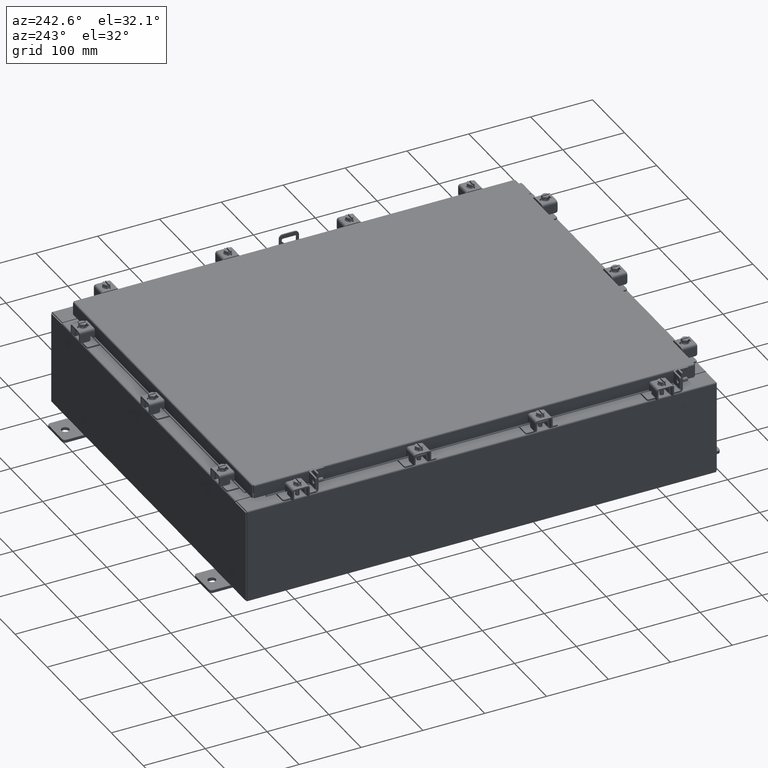
[diagram: clean part render]
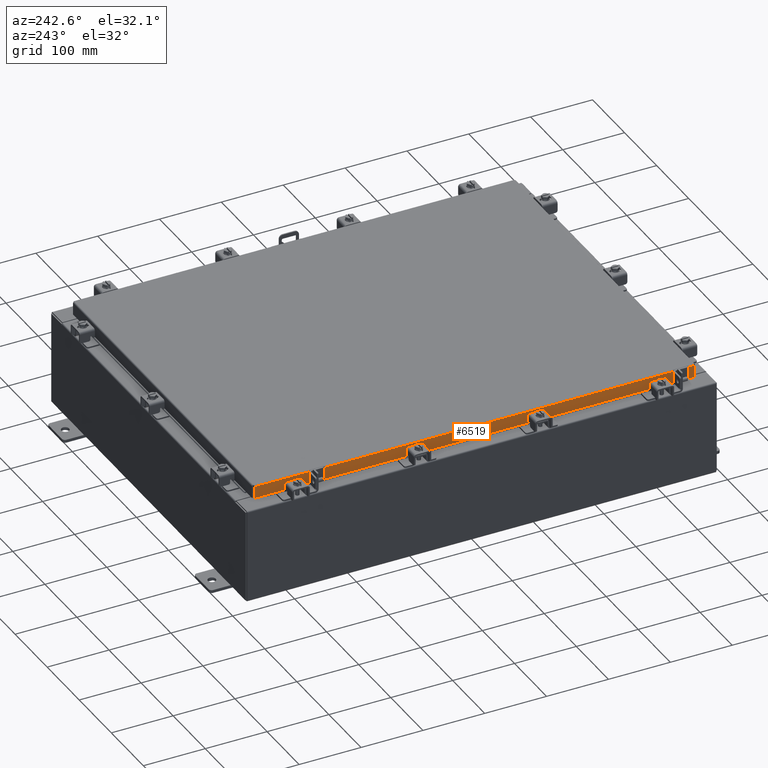
[diagram: same view with one face highlighted and labeled with its STEP entity id]
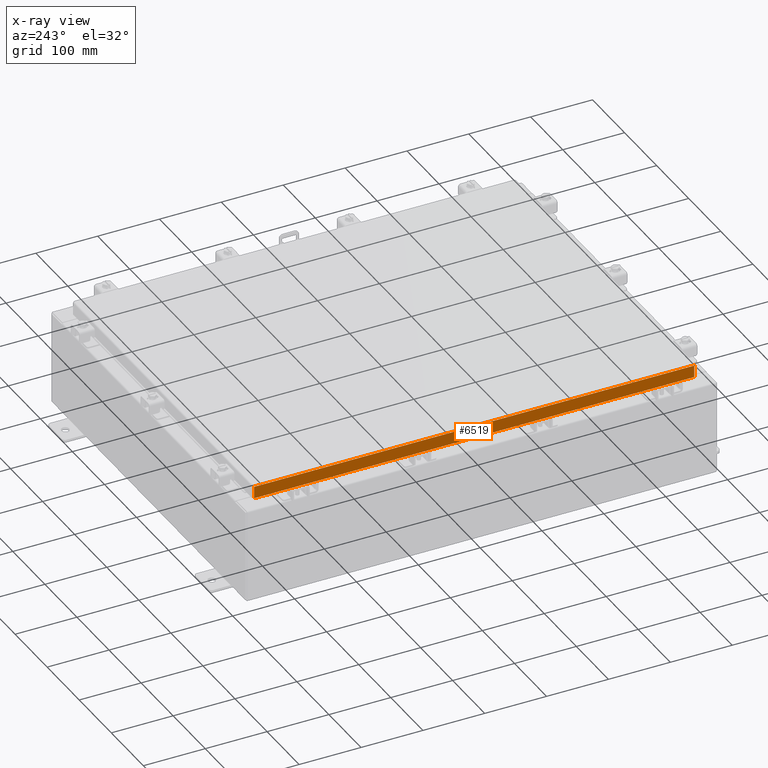
[diagram: x-ray of the same camera — body ghosted, the highlighted face saturated]
A machine part, auxiliary view. The second image highlights one B-rep face of the part: STEP entity #6519.
The next image is the same camera in x-ray: the body ghosted, the highlighted face saturated — about 0% of this face is hidden behind the body in this view.
In plain terms, the highlighted planar face has unit normal (1, 0, -0).
Its self-contained STEP definition (entity closure, byte-faithful):
#70 = LINE ( 'NONE', #166, #18541 ) ;
#166 = CARTESIAN_POINT ( 'NONE',  ( -11.07799999999999900, -14.00515786437626500, -0.07469999999999978000 ) ) ;
#1214 = VECTOR ( 'NONE', #10271, 39.37007874015748100 ) ;
#1936 = DIRECTION ( 'NONE',  ( -2.818880942772360100E-015, 6.982962677686265900E-015, -1.000000000000000000 ) ) ;
#2084 = CARTESIAN_POINT ( 'NONE',  ( -11.07799999999999900, -14.09399999999999600, -0.08770000000000007000 ) ) ;
#2090 = LINE ( 'NONE', #3295, #11014 ) ;
#2263 = ORIENTED_EDGE ( 'NONE', *, *, #4721, .F. ) ;
#2434 = VERTEX_POINT ( 'NONE', #13187 ) ;
#2695 = VERTEX_POINT ( 'NONE', #16644 ) ;
#3128 = LINE ( 'NONE', #7439, #12636 ) ;
#3295 = CARTESIAN_POINT ( 'NONE',  ( -11.07800000000000300, -14.09399999999999600, -0.8499999999999996400 ) ) ;
#3687 = ORIENTED_EDGE ( 'NONE', *, *, #13384, .F. ) ;
#3900 = DIRECTION ( 'NONE',  ( 3.414908049476327800E-031, -1.000000000000000000, -9.308245715024052500E-046 ) ) ;
#4721 = EDGE_CURVE ( 'NONE', #17119, #2695, #3128, .T. ) ;
#5331 = LINE ( 'NONE', #18601, #8929 ) ;
#6107 = CARTESIAN_POINT ( 'NONE',  ( -11.07799999999999900, 14.00515786437626900, -0.08770000000000007000 ) ) ;
#6442 = VERTEX_POINT ( 'NONE', #16972 ) ;
#6519 = ADVANCED_FACE ( 'NONE', ( #8438 ), #17133, .F. ) ;
#6985 = VERTEX_POINT ( 'NONE', #6107 ) ;
#7278 = EDGE_LOOP ( 'NONE', ( #22928, #10538, #3687, #2263, #16052, #15220 ) ) ;
#7439 = CARTESIAN_POINT ( 'NONE',  ( -11.07799999999999600, -13.25515786437626200, -0.8500000000000012000 ) ) ;
#7906 = DIRECTION ( 'NONE',  ( -0.0000000000000000000, 1.000000000000000000, -0.0000000000000000000 ) ) ;
#8009 = CARTESIAN_POINT ( 'NONE',  ( -11.07799999999999600, -13.25515786437625600, -0.8500000000000012000 ) ) ;
#8203 = EDGE_CURVE ( 'NONE', #6442, #17119, #5331, .T. ) ;
#8438 = FACE_OUTER_BOUND ( 'NONE', #7278, .T. ) ;
#8929 = VECTOR ( 'NONE', #20505, 39.37007874015748100 ) ;
#9989 = CARTESIAN_POINT ( 'NONE',  ( -11.07799999999999900, -3.783035137209876100E-030, 3.148837674004379000E-014 ) ) ;
#10271 = DIRECTION ( 'NONE',  ( -2.818880942772360100E-015, 6.982962677686265900E-015, -1.000000000000000000 ) ) ;
#10538 = ORIENTED_EDGE ( 'NONE', *, *, #14706, .T. ) ;
#10692 = LINE ( 'NONE', #19224, #1214 ) ;
#11014 = VECTOR ( 'NONE', #21227, 39.37007874015748100 ) ;
#11489 = VERTEX_POINT ( 'NONE', #16757 ) ;
#11788 = DIRECTION ( 'NONE',  ( -2.818880942772360100E-015, 0.0000000000000000000, -1.000000000000000000 ) ) ;
#12636 = VECTOR ( 'NONE', #7906, 39.37007874015748100 ) ;
#13187 = CARTESIAN_POINT ( 'NONE',  ( -11.07799999999999900, -14.00515786437626400, -0.08770000000000007000 ) ) ;
#13384 = EDGE_CURVE ( 'NONE', #2695, #11489, #2090, .T. ) ;
#14706 = EDGE_CURVE ( 'NONE', #6985, #11489, #10692, .T. ) ;
#15220 = ORIENTED_EDGE ( 'NONE', *, *, #16199, .F. ) ;
#16052 = ORIENTED_EDGE ( 'NONE', *, *, #8203, .F. ) ;
#16199 = EDGE_CURVE ( 'NONE', #2434, #6442, #70, .T. ) ;
#16644 = CARTESIAN_POINT ( 'NONE',  ( -11.07799999999999600, 13.25515786437627400, -0.8500000000000012000 ) ) ;
#16757 = CARTESIAN_POINT ( 'NONE',  ( -11.07800000000000300, 14.00515786437627400, -0.8499999999999963100 ) ) ;
#16972 = CARTESIAN_POINT ( 'NONE',  ( -11.07800000000000300, -14.00515786437626200, -0.8499999999999996400 ) ) ;
#17119 = VERTEX_POINT ( 'NONE', #8009 ) ;
#17133 = PLANE ( 'NONE',  #17813 ) ;
#17813 = AXIS2_PLACEMENT_3D ( 'NONE', #9989, #22530, #11788 ) ;
#18344 = VECTOR ( 'NONE', #3900, 39.37007874015748100 ) ;
#18541 = VECTOR ( 'NONE', #1936, 39.37007874015748100 ) ;
#18601 = CARTESIAN_POINT ( 'NONE',  ( -11.07800000000000300, -14.09399999999999600, -0.8499999999999996400 ) ) ;
#18920 = LINE ( 'NONE', #2084, #18344 ) ;
#19224 = CARTESIAN_POINT ( 'NONE',  ( -11.07799999999999900, 14.00515786437626900, 1.292858714020875700E-013 ) ) ;
#20505 = DIRECTION ( 'NONE',  ( -0.0000000000000000000, 1.000000000000000000, 1.211441035930299800E-016 ) ) ;
#21227 = DIRECTION ( 'NONE',  ( -0.0000000000000000000, 1.000000000000000000, 1.211441035930299800E-016 ) ) ;
#21423 = EDGE_CURVE ( 'NONE', #6985, #2434, #18920, .T. ) ;
#22530 = DIRECTION ( 'NONE',  ( 1.000000000000000000, 3.414908049476327800E-031, -2.818880942772360100E-015 ) ) ;
#22928 = ORIENTED_EDGE ( 'NONE', *, *, #21423, .F. ) ;